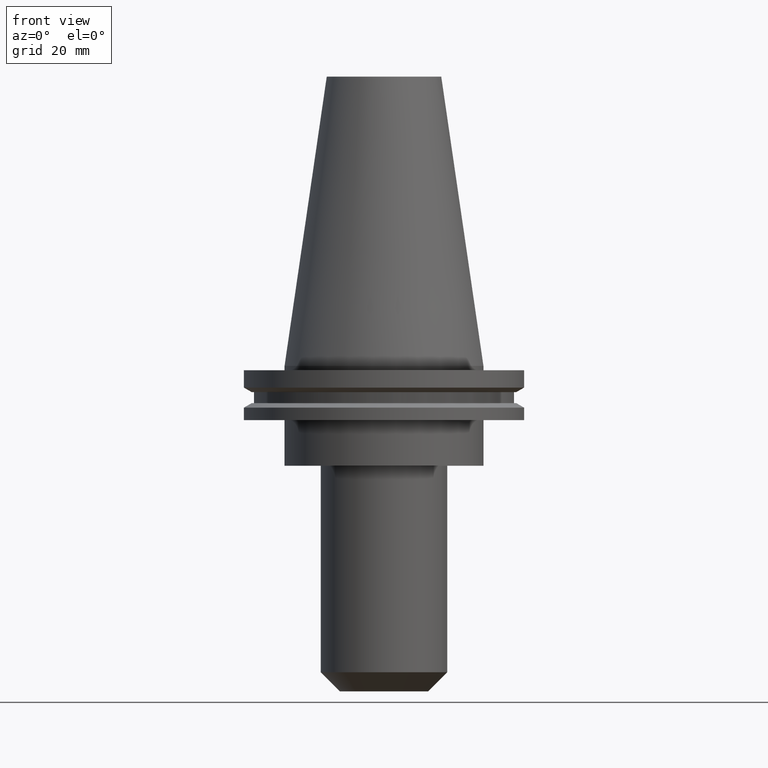
[diagram: clean part render]
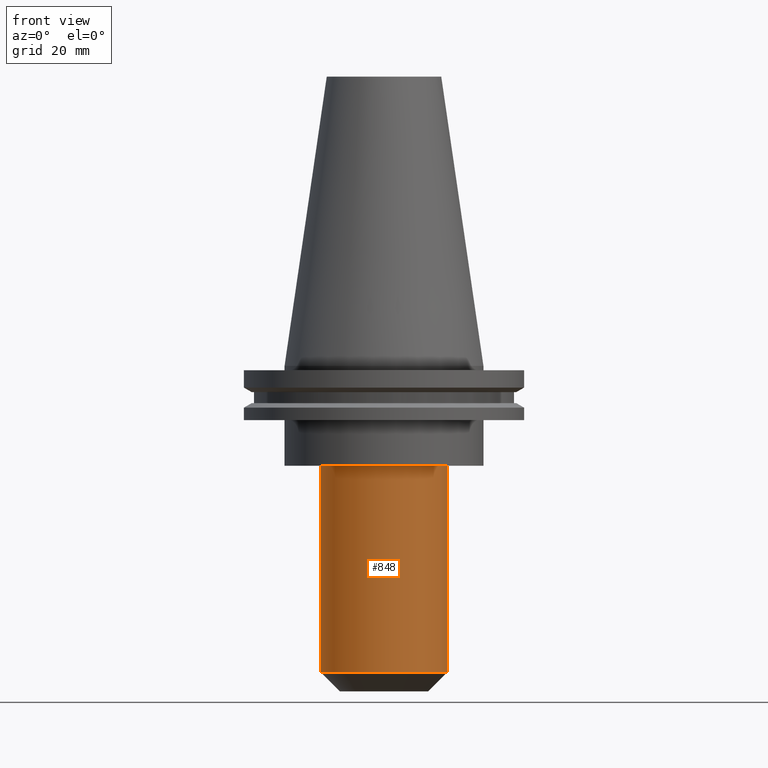
[diagram: same view with one face highlighted and labeled with its STEP entity id]
A machine part, front view. The second image highlights one B-rep face of the part: STEP entity #848.
In plain terms, the highlighted cylindrical surface (partial cylindrical patch) has radius 22.225 mm, axis along (-0, -0, 1).
Its self-contained STEP definition (entity closure, byte-faithful):
#59 = DIRECTION ( 'NONE',  ( -0.000000000000000000, -0.000000000000000000, 1.000000000000000000 ) ) ;
#69 = CARTESIAN_POINT ( 'NONE',  ( -22.22499999999999432, 2.721777511104992060E-15, -35.04999999999999716 ) ) ;
#73 = AXIS2_PLACEMENT_3D ( 'NONE', #785, #59, #328 ) ;
#75 = EDGE_CURVE ( 'NONE', #310, #754, #538, .T. ) ;
#118 = DIRECTION ( 'NONE',  ( 1.000000000000000000, 0.000000000000000000, 0.000000000000000000 ) ) ;
#139 = AXIS2_PLACEMENT_3D ( 'NONE', #257, #790, #118 ) ;
#160 = CARTESIAN_POINT ( 'NONE',  ( -22.22499999999999787, 2.721777511104992849E-15, -107.5999999999999943 ) ) ;
#168 = DIRECTION ( 'NONE',  ( -0.000000000000000000, -0.000000000000000000, 1.000000000000000000 ) ) ;
#169 = ORIENTED_EDGE ( 'NONE', *, *, #75, .T. ) ;
#177 = CARTESIAN_POINT ( 'NONE',  ( 22.22499999999999432, 0.000000000000000000, -35.04999999999999716 ) ) ;
#231 = VERTEX_POINT ( 'NONE', #439 ) ;
#247 = CIRCLE ( 'NONE', #73, 22.22499999999999787 ) ;
#257 = CARTESIAN_POINT ( 'NONE',  ( 0.000000000000000000, 0.000000000000000000, -35.04999999999999716 ) ) ;
#295 = FACE_OUTER_BOUND ( 'NONE', #487, .T. ) ;
#308 = EDGE_CURVE ( 'NONE', #231, #310, #625, .T. ) ;
#310 = VERTEX_POINT ( 'NONE', #177 ) ;
#328 = DIRECTION ( 'NONE',  ( 1.000000000000000000, 0.000000000000000000, 0.000000000000000000 ) ) ;
#342 = DIRECTION ( 'NONE',  ( 1.000000000000000000, 0.000000000000000000, 0.000000000000000000 ) ) ;
#354 = DIRECTION ( 'NONE',  ( -0.000000000000000000, -0.000000000000000000, 1.000000000000000000 ) ) ;
#357 = AXIS2_PLACEMENT_3D ( 'NONE', #678, #354, #342 ) ;
#394 = DIRECTION ( 'NONE',  ( -0.000000000000000000, -0.000000000000000000, 1.000000000000000000 ) ) ;
#403 = CYLINDRICAL_SURFACE ( 'NONE', #357, 22.22499999999999432 ) ;
#439 = CARTESIAN_POINT ( 'NONE',  ( 22.22499999999999787, 0.000000000000000000, -107.5999999999999943 ) ) ;
#445 = VECTOR ( 'NONE', #394, 1000.000000000000000 ) ;
#487 = EDGE_LOOP ( 'NONE', ( #791, #624, #553, #169 ) ) ;
#494 = EDGE_CURVE ( 'NONE', #813, #754, #519, .T. ) ;
#519 = LINE ( 'NONE', #776, #445 ) ;
#538 = CIRCLE ( 'NONE', #139, 22.22499999999999432 ) ;
#553 = ORIENTED_EDGE ( 'NONE', *, *, #308, .T. ) ;
#624 = ORIENTED_EDGE ( 'NONE', *, *, #782, .T. ) ;
#625 = LINE ( 'NONE', #633, #639 ) ;
#633 = CARTESIAN_POINT ( 'NONE',  ( 22.22499999999999432, 0.000000000000000000, 0.000000000000000000 ) ) ;
#639 = VECTOR ( 'NONE', #168, 1000.000000000000000 ) ;
#678 = CARTESIAN_POINT ( 'NONE',  ( 0.000000000000000000, 0.000000000000000000, 0.000000000000000000 ) ) ;
#754 = VERTEX_POINT ( 'NONE', #69 ) ;
#776 = CARTESIAN_POINT ( 'NONE',  ( -22.22499999999999432, 2.721777511104992060E-15, 0.000000000000000000 ) ) ;
#782 = EDGE_CURVE ( 'NONE', #813, #231, #247, .T. ) ;
#785 = CARTESIAN_POINT ( 'NONE',  ( 0.000000000000000000, 0.000000000000000000, -107.5999999999999943 ) ) ;
#790 = DIRECTION ( 'NONE',  ( 0.000000000000000000, 0.000000000000000000, -1.000000000000000000 ) ) ;
#791 = ORIENTED_EDGE ( 'NONE', *, *, #494, .F. ) ;
#813 = VERTEX_POINT ( 'NONE', #160 ) ;
#848 = ADVANCED_FACE ( 'NONE', ( #295 ), #403, .T. ) ;